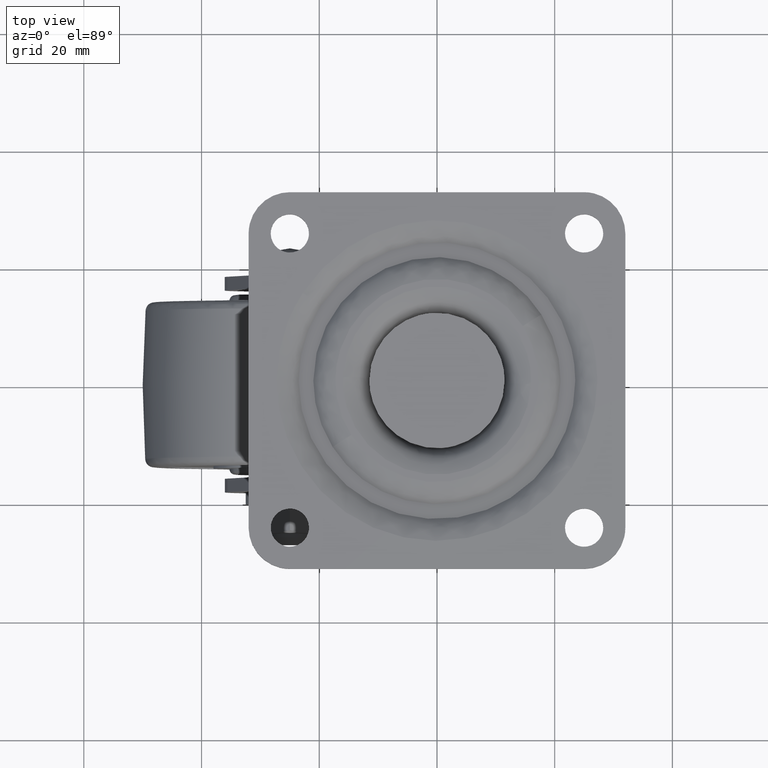
[diagram: clean part render]
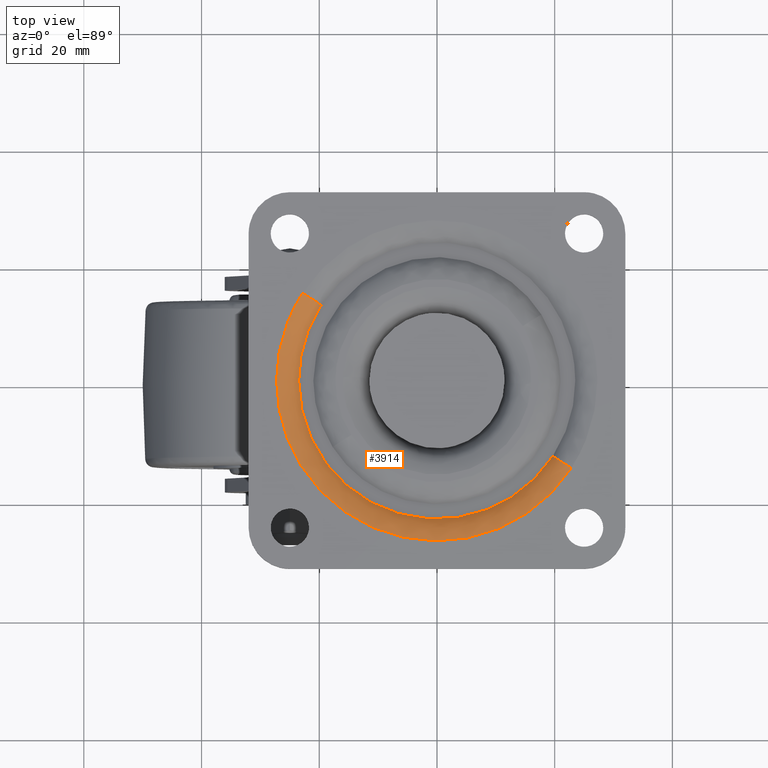
[diagram: same view with one face highlighted and labeled with its STEP entity id]
A machine part, top view. The second image highlights one B-rep face of the part: STEP entity #3914.
In plain terms, the highlighted face is a freeform B-spline surface patch.
Its self-contained STEP definition (entity closure, byte-faithful):
#3641=CARTESIAN_POINT('',(19.681908941130342,-12.840267148355149,-1.999999999742957));
#3642=VERTEX_POINT('',#3641);
#3643=CARTESIAN_POINT('',(-23.500000000000000,0.0,-2.000000000000093));
#3644=VERTEX_POINT('',#3643);
#3645=CARTESIAN_POINT('',(19.681908941130342,-12.840267148355149,-1.999999999742957));
#3646=CARTESIAN_POINT('',(19.039066216613261,-13.825767218217170,-1.999999999744893));
#3647=CARTESIAN_POINT('',(18.011208463970220,-15.168832704489260,-1.999999999748284));
#3648=CARTESIAN_POINT('',(16.225415581069001,-17.044675369907189,-1.999999999755049));
#3649=CARTESIAN_POINT('',(14.157758100998221,-18.857807535732508,-1.999999999763379));
#3650=CARTESIAN_POINT('',(11.617796551379049,-20.511664837870789,-1.999999999774600));
#3651=CARTESIAN_POINT('',(9.061984255843461,-21.720949778156839,-1.999999999786599));
#3652=CARTESIAN_POINT('',(6.809706281967566,-22.535095393407119,-1.999999999797705));
#3653=CARTESIAN_POINT('',(4.636845464766889,-23.076527074874178,-1.999999999808403));
#3654=CARTESIAN_POINT('',(2.073981205489848,-23.454905430031769,-1.999999999822277));
#3655=CARTESIAN_POINT('',(-0.479229802648318,-23.554339264213979,-1.999999999835798));
#3656=CARTESIAN_POINT('',(-3.649783485528942,-23.288260932060560,-1.999999999853595));
#3657=CARTESIAN_POINT('',(-6.683963654975612,-22.613157551269740,-1.999999999871315));
#3658=CARTESIAN_POINT('',(-9.697966040024905,-21.473048392016860,-1.999999999889648));
#3659=CARTESIAN_POINT('',(-12.163984297219450,-20.167803889137069,-1.999999999905273));
#3660=CARTESIAN_POINT('',(-14.365256009718699,-18.655487606308100,-1.999999999919737));
#3661=CARTESIAN_POINT('',(-16.421383918358949,-16.889604650922841,-1.999999999933982));
#3662=CARTESIAN_POINT('',(-18.597073219199679,-14.511845220775511,-1.999999999949592));
#3663=CARTESIAN_POINT('',(-20.438919587813139,-11.765846595266961,-1.999999999964239));
#3664=CARTESIAN_POINT('',(-21.861413687636521,-8.787593774448451,-1.999999999976819));
#3665=CARTESIAN_POINT('',(-22.715643628410259,-6.213662540722059,-1.999999999985710));
#3666=CARTESIAN_POINT('',(-23.339354492818511,-3.255275770429008,-1.999999999993884));
#3667=CARTESIAN_POINT('',(-23.500094187435099,-1.255058575285451,-1.999999999998112));
#3668=CARTESIAN_POINT('',(-23.500000000000000,0.0,-2.000000000000093));
#3669=B_SPLINE_CURVE_WITH_KNOTS('',3,(#3645,#3646,#3647,#3648,#3649,#3650,#3651,#3652,#3653,#3654,#3655,#3656,#3657,#3658,#3659,#3660,#3661,#3662,#3663,#3664,#3665,#3666,#3667,#3668),.UNSPECIFIED.,.F.,.U.,(4,1,1,1,1,1,1,1,1,1,1,1,1,1,1,1,1,1,1,1,1,4),(0.000000069475504,3.529874912401162,5.059492058034799,7.765741295603874,11.766268772707290,14.119526739840181,16.237470040025830,18.943717875165721,20.826322600401600,24.003166721646721,26.591701267591990,30.356915705277501,33.298486748038187,36.240062483369570,38.710980994275779,41.299567455095243,44.358800132170842,48.359333138085368,51.183243817552523,54.242490356242897,56.478083321649777,60.243243651758341),.UNSPECIFIED.);
#3670=EDGE_CURVE('',#3642,#3644,#3669,.T.);
#3687=CARTESIAN_POINT('',(-19.681908941130331,12.840267148355149,-1.999999999742957));
#3688=VERTEX_POINT('',#3687);
#3715=CARTESIAN_POINT('',(-23.500000000000000,0.0,-2.000000000000093));
#3716=CARTESIAN_POINT('',(-23.500000000071942,6.987793855953459,-1.999999999871526));
#3717=CARTESIAN_POINT('',(-19.681908941130335,12.840267148355148,-1.999999999742957));
#3725=(BOUNDED_CURVE()B_SPLINE_CURVE(2,(#3715,#3716,#3717),.UNSPECIFIED.,.F.,.U.)B_SPLINE_CURVE_WITH_KNOTS((3,3),(0.0,0.093601467029317),.UNSPECIFIED.)CURVE()GEOMETRIC_REPRESENTATION_ITEM()RATIONAL_B_SPLINE_CURVE((1.0,0.890339060144489,0.862793519059294))REPRESENTATION_ITEM(''));
#3726=EDGE_CURVE('',#3644,#3688,#3725,.T.);
#3815=CARTESIAN_POINT('',(19.587387326071987,-12.778602256375427,-2.177778589317673));
#3816=CARTESIAN_POINT('',(6.808785069696557,-32.365989582447405,-2.177778589317675));
#3817=CARTESIAN_POINT('',(-12.778602256375427,-19.587387326071987,-2.177778589317673));
#3818=CARTESIAN_POINT('',(-32.365989582447426,-6.808785069696545,-2.177778589317675));
#3819=CARTESIAN_POINT('',(-19.587387326071994,12.778602256375414,-2.177778589317673));
#3820=CARTESIAN_POINT('',(20.747138024575953,-13.535211223463634,0.120652189882761));
#3821=CARTESIAN_POINT('',(7.211926801112326,-34.282349248039580,0.120652189882761));
#3822=CARTESIAN_POINT('',(-13.535211223463634,-20.747138024575953,0.120652189882761));
#3823=CARTESIAN_POINT('',(-34.282349248039580,-7.211926801112312,0.120652189882761));
#3824=CARTESIAN_POINT('',(-20.747138024575968,13.535211223463621,0.120652189882761));
#3825=CARTESIAN_POINT('',(22.992039990343130,-14.999761285579888,-0.004931002402365));
#3826=CARTESIAN_POINT('',(7.992278704763237,-37.991801275923024,-0.004931002402365));
#3827=CARTESIAN_POINT('',(-14.999761285579888,-22.992039990343130,-0.004931002402365));
#3828=CARTESIAN_POINT('',(-37.991801275923024,-7.992278704763222,-0.004931002402365));
#3829=CARTESIAN_POINT('',(-22.992039990343130,14.999761285579877,-0.004931002402365));
#3837=(BOUNDED_SURFACE()B_SPLINE_SURFACE(2,2,((#3815,#3820,#3825),(#3816,#3821,#3826),(#3817,#3822,#3827),(#3818,#3823,#3828),(#3819,#3824,#3829)),.UNSPECIFIED.,.F.,.F.,.U.)B_SPLINE_SURFACE_WITH_KNOTS((3,2,3),(3,3),(0.0,45.484398540951489,90.968797081902977),(0.0,4.959283534288572),.UNSPECIFIED.)GEOMETRIC_REPRESENTATION_ITEM()RATIONAL_B_SPLINE_SURFACE(((0.923531344887134,0.793043540680917,0.923132209010213),(0.653035276608024,0.560766465391666,0.652753044922839),(0.923531344887134,0.793043540680917,0.923132209010213),(0.653035276608024,0.560766465391666,0.652753044922839),(0.923531344887134,0.793043540680917,0.923132209010213)))REPRESENTATION_ITEM('')SURFACE());
#3838=ORIENTED_EDGE('',*,*,#3670,.T.);
#3839=ORIENTED_EDGE('',*,*,#3726,.T.);
#3840=CARTESIAN_POINT('',(-22.815651917583200,14.884687591186140,-8.522812E-016));
#3841=VERTEX_POINT('',#3840);
#3842=CARTESIAN_POINT('',(-19.681908941130327,12.840267148355155,-1.999999999742957));
#3843=CARTESIAN_POINT('',(-20.801102861361809,13.570417306563828,-6.558497E-010));
#3844=CARTESIAN_POINT('',(-22.815651917583196,14.884687591186134,-8.522812E-016));
#3852=(BOUNDED_CURVE()B_SPLINE_CURVE(2,(#3842,#3843,#3844),.UNSPECIFIED.,.F.,.U.)B_SPLINE_CURVE_WITH_KNOTS((3,3),(-1.617245963020243,-0.384830415951990),.UNSPECIFIED.)CURVE()GEOMETRIC_REPRESENTATION_ITEM()RATIONAL_B_SPLINE_CURVE((0.912217013786676,0.804339750230295,0.911854121042049))REPRESENTATION_ITEM(''));
#3853=EDGE_CURVE('',#3688,#3841,#3852,.T.);
#3854=ORIENTED_EDGE('',*,*,#3853,.T.);
#3855=CARTESIAN_POINT('',(-27.241657386774001,0.0,0.0));
#3856=VERTEX_POINT('',#3855);
#3857=CARTESIAN_POINT('',(-27.241657386774001,0.0,0.0));
#3858=CARTESIAN_POINT('',(-27.241657386260183,8.100386642757956,-4.261406E-016));
#3859=CARTESIAN_POINT('',(-22.815651917583200,14.884687591186145,-8.522812E-016));
#3867=(BOUNDED_CURVE()B_SPLINE_CURVE(2,(#3857,#3858,#3859),.UNSPECIFIED.,.F.,.U.)B_SPLINE_CURVE_WITH_KNOTS((3,3),(0.0,0.093601467029614),.UNSPECIFIED.)CURVE()GEOMETRIC_REPRESENTATION_ITEM()RATIONAL_B_SPLINE_CURVE((1.0,0.890339060144140,0.862793519059119))REPRESENTATION_ITEM(''));
#3868=EDGE_CURVE('',#3856,#3841,#3867,.T.);
#3869=ORIENTED_EDGE('',*,*,#3868,.F.);
#3870=CARTESIAN_POINT('',(22.815651917583210,-14.884687591186131,-7.305267E-016));
#3871=VERTEX_POINT('',#3870);
#3872=CARTESIAN_POINT('',(22.815651917583210,-14.884687591186131,-7.305267E-016));
#3873=CARTESIAN_POINT('',(21.921473836661828,-16.255622269632688,-7.240033E-016));
#3874=CARTESIAN_POINT('',(20.167708254292180,-18.477110509688551,-7.093453E-016));
#3875=CARTESIAN_POINT('',(17.527683681939472,-20.923725761891991,-6.837018E-016));
#3876=CARTESIAN_POINT('',(15.227699141720390,-22.635264617561209,-6.596869E-016));
#3877=CARTESIAN_POINT('',(13.167199152127431,-23.890424019089789,-6.370635E-016));
#3878=CARTESIAN_POINT('',(10.431440802053141,-25.235750842860028,-6.057455E-016));
#3879=CARTESIAN_POINT('',(7.421294585294656,-26.298301066020400,-5.696210E-016));
#3880=CARTESIAN_POINT('',(3.586096827380413,-27.092314096703689,-5.213634E-016));
#3881=CARTESIAN_POINT('',(-0.373335725184461,-27.355970209846380,-4.693255E-016));
#3882=CARTESIAN_POINT('',(-4.324099114553206,-26.984384806978259,-4.148711E-016));
#3883=CARTESIAN_POINT('',(-7.692909588651690,-26.190387895406140,-3.665355E-016));
#3884=CARTESIAN_POINT('',(-10.438370074138380,-25.214276792365268,-3.258319E-016));
#3885=CARTESIAN_POINT('',(-12.945697363022671,-24.020834206090640,-2.874548E-016));
#3886=CARTESIAN_POINT('',(-15.788572644260690,-22.299921341433301,-2.424755E-016));
#3887=CARTESIAN_POINT('',(-18.562042710901888,-20.070524491737849,-1.963995E-016));
#3888=CARTESIAN_POINT('',(-21.042235356447840,-17.400272435882499,-1.524982E-016));
#3889=CARTESIAN_POINT('',(-22.868595976042670,-14.899913483699510,-1.180409E-016));
#3890=CARTESIAN_POINT('',(-24.597632875297212,-11.902711186287229,-8.290774E-017));
#3891=CARTESIAN_POINT('',(-25.840474648184639,-8.862237391571378,-5.412105E-017));
#3892=CARTESIAN_POINT('',(-26.660484443133761,-5.783739511230263,-3.085221E-017));
#3893=CARTESIAN_POINT('',(-27.124032158072310,-3.046175007171947,-1.372221E-017));
#3894=CARTESIAN_POINT('',(-27.241690879070909,-1.091167973817993,-4.350023E-018));
#3895=CARTESIAN_POINT('',(-27.241657386774001,0.0,0.0));
#3896=B_SPLINE_CURVE_WITH_KNOTS('',3,(#3872,#3873,#3874,#3875,#3876,#3877,#3878,#3879,#3880,#3881,#3882,#3883,#3884,#3885,#3886,#3887,#3888,#3889,#3890,#3891,#3892,#3893,#3894,#3895),.UNSPECIFIED.,.F.,.U.,(4,1,1,1,1,1,1,1,1,1,1,1,1,1,1,1,1,1,1,1,1,4),(0.000000055416237,4.910282948320941,8.456600339258053,10.775359753858149,13.503289116098561,15.685631214326341,19.913962097363349,23.051077622115489,27.415735458507740,31.780438801504619,34.917565481616478,37.781872166200699,40.509837047126616,43.237757784488977,47.738864590221127,51.148793627644253,54.149530352902900,57.013857607342487,61.514941757182591,63.970087515833832,66.561638237592220,69.835140570289653),.UNSPECIFIED.);
#3897=EDGE_CURVE('',#3871,#3856,#3896,.T.);
#3898=ORIENTED_EDGE('',*,*,#3897,.F.);
#3899=CARTESIAN_POINT('',(19.681908941130338,-12.840267148355142,-1.999999999742957));
#3900=CARTESIAN_POINT('',(20.801102861361816,-13.570417306563819,-6.558445E-010));
#3901=CARTESIAN_POINT('',(22.815651917583207,-14.884687591186140,-7.305267E-016));
#3909=(BOUNDED_CURVE()B_SPLINE_CURVE(2,(#3899,#3900,#3901),.UNSPECIFIED.,.F.,.U.)B_SPLINE_CURVE_WITH_KNOTS((3,3),(-1.617245963020242,-0.384830415951987),.UNSPECIFIED.)CURVE()GEOMETRIC_REPRESENTATION_ITEM()RATIONAL_B_SPLINE_CURVE((0.912217013786676,0.804339750230295,0.911854121042050))REPRESENTATION_ITEM(''));
#3910=EDGE_CURVE('',#3642,#3871,#3909,.T.);
#3911=ORIENTED_EDGE('',*,*,#3910,.F.);
#3912=EDGE_LOOP('',(#3838,#3839,#3854,#3869,#3898,#3911));
#3913=FACE_OUTER_BOUND('',#3912,.T.);
#3914=ADVANCED_FACE('',(#3913),#3837,.T.);